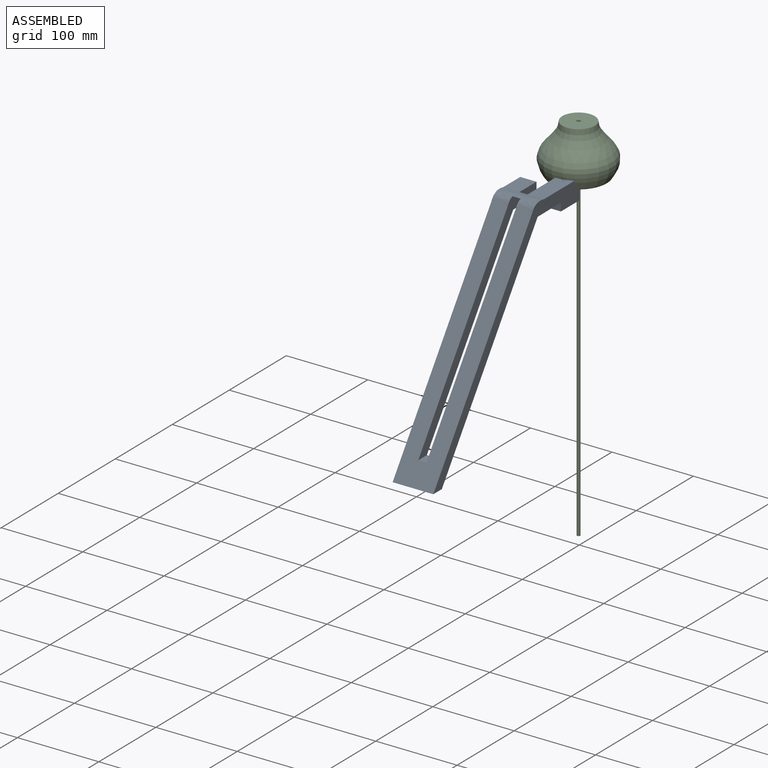
[diagram: assembled view]
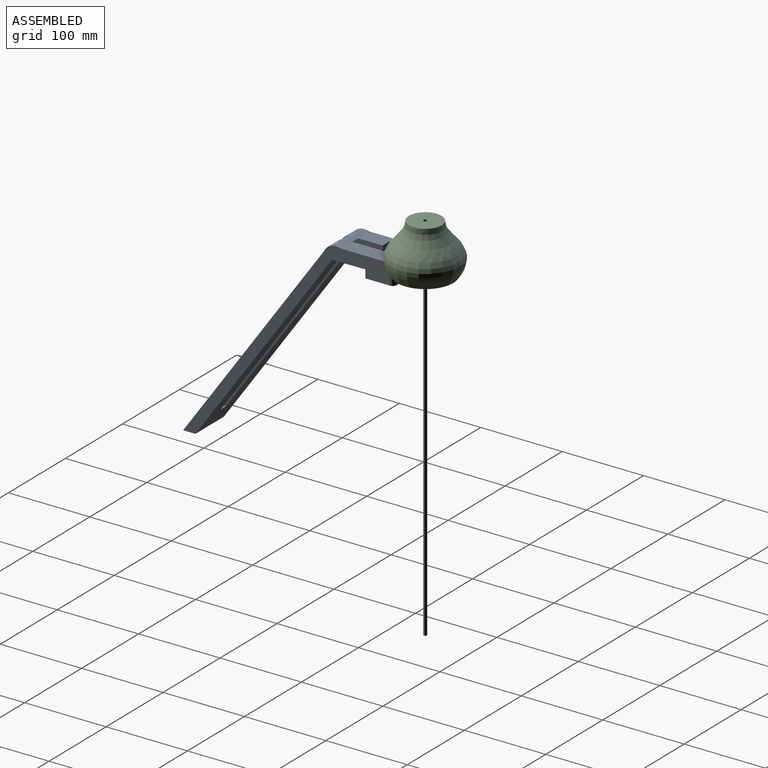
[diagram: assembled view, second angle]
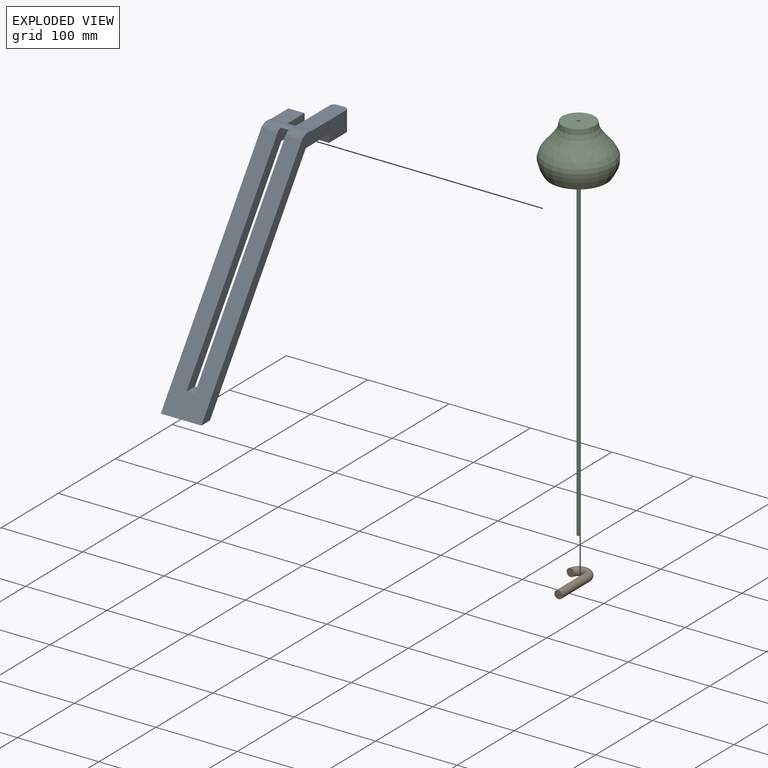
[diagram: exploded view]
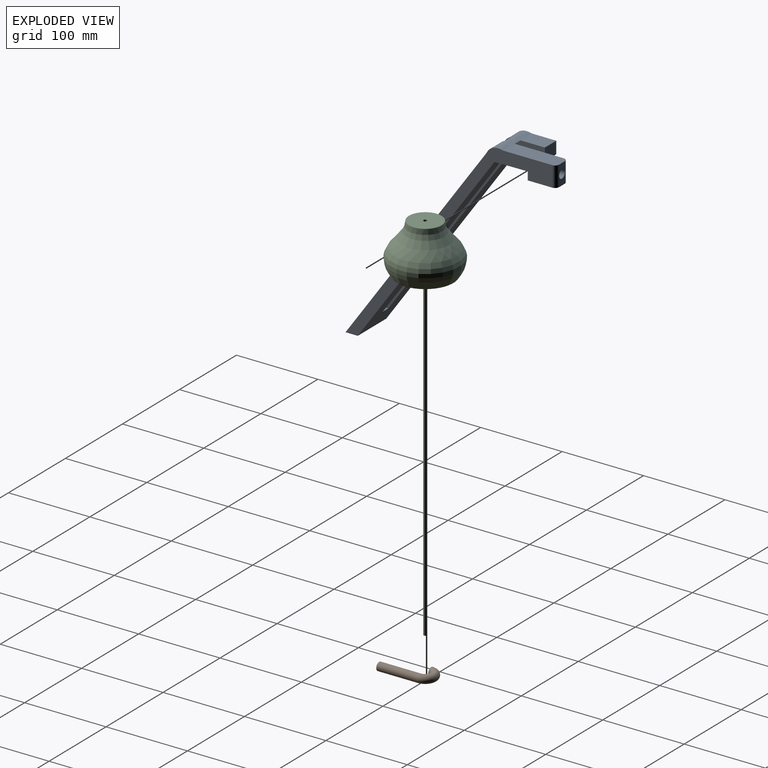
[diagram: exploded view, second angle]
ASSEMBLY  parts=3 mates=2
PART A: 23 faces, bbox 50x258.9x256 mm
  f0: plane 12.5x10mm, normal (0,1,0), area 85.7mm2, adj f1,f16,f18,f21
  f1: plane 65x20mm, normal (0,0,1), area 1289.3mm2, adj f0,f3,f10,f14,f16,f18
  f2: plane 40.86x20mm, normal (0,0.01,-1), area 688.5mm2, adj f5,f10,f14,f19,f21,f22
  f3: extruded ~50x20.87mm, area 1111.6mm2, adj f1,f4,f8,f10,f11,f12,f14,f15
  f4: plane 245.1x173mm, normal (0,-0.82,0.58), area 12286.5mm2, adj f3,f9,f10,f11,f13,f14,f15
  f5: plane 238.03x168.01mm, normal (0,0.82,-0.58), area 11940.6mm2, adj f2,f6,f9,f10,f11,f13,f14,f15
  f6: plane 40.86x20mm, normal (0,0.01,-1), area 817.2mm2, adj f5,f7,f11,f15
  f7: plane 20x15mm, normal (0,1,0), area 300mm2, adj f6,f8,f11,f15
  f8: plane 30x20mm, normal (0,0,1), area 600mm2, adj f3,f7,f11,f15
  f9: plane 50x15mm, normal (0,0,-1), area 750mm2, adj f4,f5,f10,f11
  f10: plane 256.02x253.86mm, normal (1,0,0), area 5093.6mm2, adj f1,f2,f3,f4,f5,f9,f16,f19
  f11: plane 256.02x223.86mm, normal (-1,0,0), area 4343.6mm2, adj f3,f4,f5,f6,f7,f8,f9
  f12: plane 12.17x10mm, normal (0,0,-1), area 121.7mm2, adj f3,f14,f15
  f13: plane 15x10mm, normal (0,0,1), area 150mm2, adj f4,f5,f14,f15
  f14: plane 237.34x230.47mm, normal (-1,0,0), area 4735.1mm2, adj f1,f2,f3,f4,f5,f12,f13,f18
  f15: plane 230.47x207.34mm, normal (1,0,0), area 3985.1mm2, adj f3,f4,f5,f6,f7,f8,f12,f13
  f16: cylinder r=5mm len=25mm, axis (0,0,1), area 196.3mm2, adj f0,f1,f10,f17,f20
  f17: plane 12.5x10mm, normal (0,1,0), area 85.7mm2, adj f16,f18,f20,f21
  f18: cylinder r=5mm len=25mm, axis (0,0,1), area 196.3mm2, adj f0,f1,f14,f17,f20
  f19: plane 20x10mm, normal (0,-1,0), area 184.6mm2, adj f2,f10,f14,f20,f21
  f20: plane 35x20mm, normal (0,0,-1), area 689.3mm2, adj f10,f14,f16,f17,f18,f19
  f21: cylinder r=5mm len=50mm, axis (0,1,0), area 1416.2mm2, adj f0,f2,f17,f19,f22
  f22: plane 10x7.64mm, normal (0,1,0), area 64.4mm2, adj f2,f21
PART B: 4 faces, bbox 32.5x65.9x10 mm
  f0: plane 10x9.99mm, normal (-0.03,-1,0), area 78.5mm2, adj f2
  f1: plane 10x10mm, normal (0,-1,0), area 78.5mm2, adj f3
  f2: torus R=10mm, axis (0,0,1), area 965.1mm2, adj f0,f3
  f3: cylinder r=5mm len=50.08mm, axis (0,1,0), area 1570.4mm2, adj f1,f2
PART C: 8 faces, bbox 84.5x84.5x460 mm
  f0: plane 40x40mm, normal (0,0,1), area 1241.6mm2, adj f1,f7
  f1: cylinder r=2.19mm len=57.85mm, axis (0,0,-1), area 796.2mm2, adj f0,f2
  f2: cone r=2.19mm half-angle=45.6deg, axis (0,0,1), area 21.1mm2, adj f1
  f3: plane 4x4mm, normal (0,0,-1), area 12.6mm2, adj f4
  f4: cylinder r=2mm len=397.37mm, axis (0,0,-1), area 4993.5mm2, adj f3,f5
  f5: cone r=4.69mm half-angle=45.6deg, axis (0,0,1), area 79mm2, adj f4,f6
  f6: plane 69.37x69.37mm, normal (0,0,-1), area 3710.8mm2, adj f5,f7
  f7: revolved ~84.46x84.46mm, area 14444.6mm2, adj f0,f6
PLACE A t=(-28.23,-130.02,-126.68)mm fixed
PLACE B t=(11.77,103.66,114.23)mm
PLACE C t=(1.78,153.31,114.23)mm
MATE slider B.f3 <-> A.f21  axis (0,1,0) through (11.77,128.85,114.23)mm
MATE planar C.f1 <-> B.f2  axis (0,0,-1) through (1.78,153.31,114.23)mm
